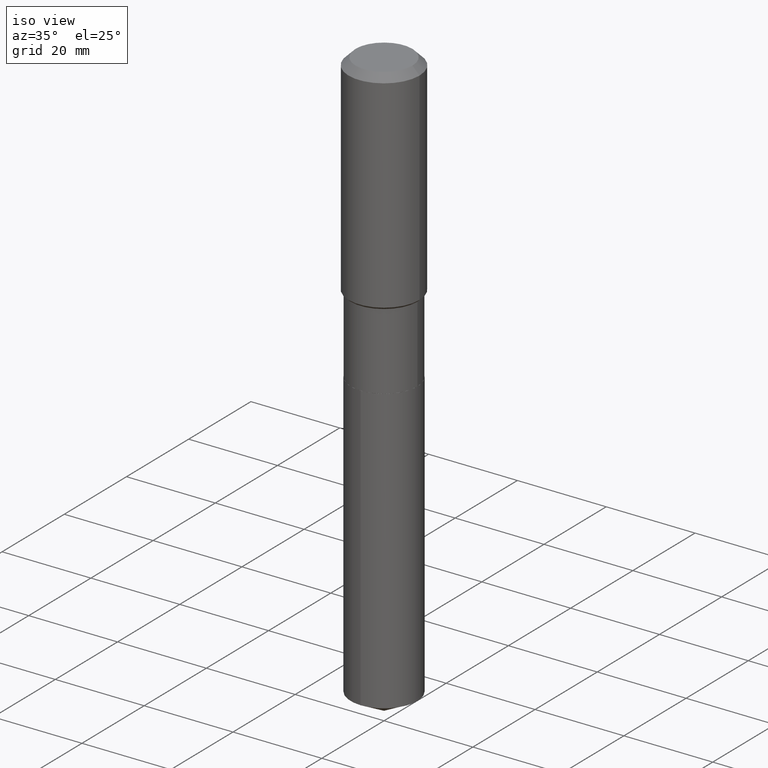
[diagram: clean part render]
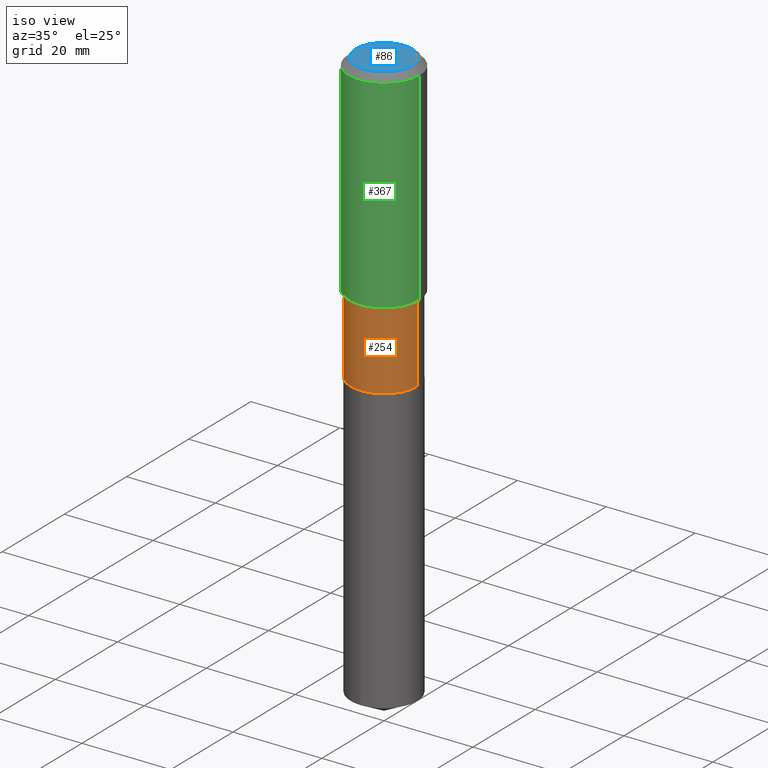
[diagram: same view with three faces highlighted in distinct colors, each labeled with its STEP entity id]
A machine part, iso view with three faces highlighted in distinct colors.
Their STEP definitions:

[orange] entity #254 — the highlighted cylindrical surface (partial cylindrical patch) has radius 7.5006 mm, axis along (-0, 0, 1).
#7 = DIRECTION ( 'NONE',  ( -2.445468806185136877E-29, 3.491481338843145188E-15, 1.000000000000000000 ) ) ;
#18 = CARTESIAN_POINT ( 'NONE',  ( 0.2953000000000000624, -1.099537303228482880E-14, -2.558599999999999763 ) ) ;
#21 = CARTESIAN_POINT ( 'NONE',  ( -0.2953000000000000069, 2.098232698699575898E-15, -1.452561532152273562E-29 ) ) ;
#51 = CARTESIAN_POINT ( 'NONE',  ( 0.2952999999999999514, -8.625704647611984399E-15, -1.879900000000000349 ) ) ;
#69 = CYLINDRICAL_SURFACE ( 'NONE', #195, 0.2953000000000000069 ) ;
#80 = AXIS2_PLACEMENT_3D ( 'NONE', #183, #176, #174 ) ;
#112 = CARTESIAN_POINT ( 'NONE',  ( 4.597236808747439228E-29, -6.563635768891230231E-15, -1.879900000000000349 ) ) ;
#113 = LINE ( 'NONE', #228, #354 ) ;
#114 = VERTEX_POINT ( 'NONE', #51 ) ;
#132 = LINE ( 'NONE', #21, #155 ) ;
#145 = ORIENTED_EDGE ( 'NONE', *, *, #272, .T. ) ;
#155 = VECTOR ( 'NONE', #284, 39.37007874015748143 ) ;
#157 = CARTESIAN_POINT ( 'NONE',  ( -0.2952999999999999514, -5.650237262528075742E-15, -1.879900000000000349 ) ) ;
#158 = VERTEX_POINT ( 'NONE', #18 ) ;
#163 = EDGE_CURVE ( 'NONE', #363, #374, #132, .T. ) ;
#174 = DIRECTION ( 'NONE',  ( 1.000000000000000000, -6.982962677686269077E-15, 0.000000000000000000 ) ) ;
#176 = DIRECTION ( 'NONE',  ( -2.445468806185136597E-29, 3.491481338843145583E-15, 1.000000000000000000 ) ) ;
#183 = CARTESIAN_POINT ( 'NONE',  ( 6.256976487505290023E-29, -8.933304153564073050E-15, -2.558599999999999763 ) ) ;
#195 = AXIS2_PLACEMENT_3D ( 'NONE', #217, #334, #485 ) ;
#196 = ORIENTED_EDGE ( 'NONE', *, *, #392, .F. ) ;
#217 = CARTESIAN_POINT ( 'NONE',  ( 0.000000000000000000, 0.000000000000000000, 0.000000000000000000 ) ) ;
#224 = ORIENTED_EDGE ( 'NONE', *, *, #451, .T. ) ;
#228 = CARTESIAN_POINT ( 'NONE',  ( 0.2953000000000000069, -2.062068878720754563E-15, 1.439935001892539937E-29 ) ) ;
#254 = ADVANCED_FACE ( 'NONE', ( #407 ), #69, .T. ) ;
#264 = EDGE_LOOP ( 'NONE', ( #271, #145, #224, #196 ) ) ;
#271 = ORIENTED_EDGE ( 'NONE', *, *, #163, .F. ) ;
#272 = EDGE_CURVE ( 'NONE', #363, #158, #401, .T. ) ;
#284 = DIRECTION ( 'NONE',  ( -2.445468806185136877E-29, 3.491481338843145188E-15, 1.000000000000000000 ) ) ;
#292 = AXIS2_PLACEMENT_3D ( 'NONE', #112, #376, #489 ) ;
#309 = CIRCLE ( 'NONE', #292, 0.2952999999999999514 ) ;
#334 = DIRECTION ( 'NONE',  ( -2.445468806185136597E-29, 3.491481338843145583E-15, 1.000000000000000000 ) ) ;
#346 = CARTESIAN_POINT ( 'NONE',  ( -0.2953000000000000624, -5.650237262528074953E-15, -2.558599999999999763 ) ) ;
#354 = VECTOR ( 'NONE', #7, 39.37007874015748143 ) ;
#363 = VERTEX_POINT ( 'NONE', #346 ) ;
#374 = VERTEX_POINT ( 'NONE', #157 ) ;
#376 = DIRECTION ( 'NONE',  ( -2.445468806185136597E-29, 3.491481338843145583E-15, 1.000000000000000000 ) ) ;
#392 = EDGE_CURVE ( 'NONE', #374, #114, #309, .T. ) ;
#401 = CIRCLE ( 'NONE', #80, 0.2953000000000000624 ) ;
#407 = FACE_OUTER_BOUND ( 'NONE', #264, .T. ) ;
#451 = EDGE_CURVE ( 'NONE', #158, #114, #113, .T. ) ;
#485 = DIRECTION ( 'NONE',  ( 1.000000000000000000, -6.982962677686266711E-15, 4.876176775795935793E-29 ) ) ;
#489 = DIRECTION ( 'NONE',  ( 1.000000000000000000, -6.982962677686265133E-15, 0.000000000000000000 ) ) ;

[blue] entity #86 — the highlighted planar face has unit normal (0, -0, -1).
#38 = CARTESIAN_POINT ( 'NONE',  ( 0.2519600000000000173, -2.054606664725195058E-15, 3.855188123729206640E-18 ) ) ;
#56 = CARTESIAN_POINT ( 'NONE',  ( -0.2519600000000000173, 1.869391481036695286E-15, 3.855188123703182704E-18 ) ) ;
#64 = CIRCLE ( 'NONE', #455, 0.2519600000000000173 ) ;
#76 = VERTEX_POINT ( 'NONE', #56 ) ;
#86 = ADVANCED_FACE ( 'NONE', ( #130 ), #470, .F. ) ;
#87 = DIRECTION ( 'NONE',  ( 1.000000000000000000, -6.982962677686266711E-15, 4.876115136096691995E-29 ) ) ;
#116 = EDGE_LOOP ( 'NONE', ( #123, #219 ) ) ;
#123 = ORIENTED_EDGE ( 'NONE', *, *, #477, .T. ) ;
#125 = AXIS2_PLACEMENT_3D ( 'NONE', #230, #419, #87 ) ;
#130 = FACE_OUTER_BOUND ( 'NONE', #116, .T. ) ;
#162 = CARTESIAN_POINT ( 'NONE',  ( -4.713871149261284790E-47, 6.730158695841843144E-33, 1.927594061857935750E-18 ) ) ;
#192 = EDGE_CURVE ( 'NONE', #344, #76, #64, .T. ) ;
#219 = ORIENTED_EDGE ( 'NONE', *, *, #192, .T. ) ;
#230 = CARTESIAN_POINT ( 'NONE',  ( -9.427742298522569579E-47, 1.346031739168368629E-32, 3.855188123715871501E-18 ) ) ;
#237 = DIRECTION ( 'NONE',  ( 2.438088387897960049E-29, -3.491481338843145188E-15, -1.000000000000000000 ) ) ;
#253 = CARTESIAN_POINT ( 'NONE',  ( -9.427742298522569579E-47, 1.346031739168368629E-32, 3.855188123715871501E-18 ) ) ;
#297 = DIRECTION ( 'NONE',  ( -2.445468806185136597E-29, 3.491481338843145583E-15, 1.000000000000000000 ) ) ;
#330 = CIRCLE ( 'NONE', #125, 0.2519600000000000173 ) ;
#333 = DIRECTION ( 'NONE',  ( 1.000000000000000000, -6.982962677686266711E-15, 4.876115136096691995E-29 ) ) ;
#344 = VERTEX_POINT ( 'NONE', #38 ) ;
#375 = AXIS2_PLACEMENT_3D ( 'NONE', #162, #237, #428 ) ;
#419 = DIRECTION ( 'NONE',  ( -2.445468806185136597E-29, 3.491481338843145583E-15, 1.000000000000000000 ) ) ;
#428 = DIRECTION ( 'NONE',  ( -1.000000000000000000, 6.982962677686265922E-15, -4.876176775795935793E-29 ) ) ;
#455 = AXIS2_PLACEMENT_3D ( 'NONE', #253, #297, #333 ) ;
#470 = PLANE ( 'NONE',  #375 ) ;
#477 = EDGE_CURVE ( 'NONE', #76, #344, #330, .T. ) ;

[green] entity #367 — the highlighted cylindrical surface (partial cylindrical patch) has radius 7.9997 mm, axis along (-0, 0, 1).
#3 = DIRECTION ( 'NONE',  ( -2.445468806185136597E-29, 3.491481338843145583E-15, 1.000000000000000000 ) ) ;
#10 = CARTESIAN_POINT ( 'NONE',  ( 1.540400801016026329E-30, -2.199284095337310135E-16, -0.06299000000000036514 ) ) ;
#34 = CYLINDRICAL_SURFACE ( 'NONE', #276, 0.3149500000000001743 ) ;
#39 = EDGE_CURVE ( 'NONE', #179, #227, #291, .T. ) ;
#42 = DIRECTION ( 'NONE',  ( -2.445468806185136597E-29, 3.491481338843145583E-15, 1.000000000000000000 ) ) ;
#53 = CARTESIAN_POINT ( 'NONE',  ( 4.549183346705900762E-29, -6.495028160582961591E-15, -1.860250000000000181 ) ) ;
#55 = AXIS2_PLACEMENT_3D ( 'NONE', #53, #322, #468 ) ;
#71 = EDGE_CURVE ( 'NONE', #179, #121, #427, .T. ) ;
#75 = DIRECTION ( 'NONE',  ( 1.000000000000000000, -6.982962677686266711E-15, 0.000000000000000000 ) ) ;
#99 = DIRECTION ( 'NONE',  ( -2.445468806185136877E-29, 3.491481338843145188E-15, 1.000000000000000000 ) ) ;
#121 = VERTEX_POINT ( 'NONE', #391 ) ;
#156 = CIRCLE ( 'NONE', #394, 0.3149500000000000077 ) ;
#173 = CARTESIAN_POINT ( 'NONE',  ( -0.3149500000000002298, -4.257173814306524817E-15, -1.860250000000000181 ) ) ;
#179 = VERTEX_POINT ( 'NONE', #173 ) ;
#189 = EDGE_LOOP ( 'NONE', ( #420, #305, #385, #412 ) ) ;
#213 = LINE ( 'NONE', #434, #285 ) ;
#227 = VERTEX_POINT ( 'NONE', #250 ) ;
#250 = CARTESIAN_POINT ( 'NONE',  ( 0.3149500000000002298, -8.694312255920253039E-15, -1.860250000000000181 ) ) ;
#258 = CARTESIAN_POINT ( 'NONE',  ( 0.000000000000000000, 0.000000000000000000, 0.000000000000000000 ) ) ;
#270 = DIRECTION ( 'NONE',  ( 1.000000000000000000, -6.982962677686265922E-15, 4.876176775795935232E-29 ) ) ;
#276 = AXIS2_PLACEMENT_3D ( 'NONE', #258, #42, #270 ) ;
#280 = EDGE_CURVE ( 'NONE', #227, #450, #213, .T. ) ;
#285 = VECTOR ( 'NONE', #326, 39.37007874015748143 ) ;
#291 = CIRCLE ( 'NONE', #55, 0.3149500000000002298 ) ;
#305 = ORIENTED_EDGE ( 'NONE', *, *, #39, .T. ) ;
#322 = DIRECTION ( 'NONE',  ( -2.445468806185136597E-29, 3.491481338843145583E-15, 1.000000000000000000 ) ) ;
#326 = DIRECTION ( 'NONE',  ( -2.445468806185136877E-29, 3.491481338843145188E-15, 1.000000000000000000 ) ) ;
#357 = EDGE_CURVE ( 'NONE', #121, #450, #156, .T. ) ;
#360 = VECTOR ( 'NONE', #99, 39.37007874015748143 ) ;
#367 = ADVANCED_FACE ( 'NONE', ( #411 ), #34, .T. ) ;
#385 = ORIENTED_EDGE ( 'NONE', *, *, #280, .T. ) ;
#391 = CARTESIAN_POINT ( 'NONE',  ( -0.3149500000000000077, -1.119623938781909738E-15, -0.06299000000000036514 ) ) ;
#394 = AXIS2_PLACEMENT_3D ( 'NONE', #10, #3, #75 ) ;
#411 = FACE_OUTER_BOUND ( 'NONE', #189, .T. ) ;
#412 = ORIENTED_EDGE ( 'NONE', *, *, #357, .F. ) ;
#417 = CARTESIAN_POINT ( 'NONE',  ( 0.3149500000000000077, -2.419212504871020909E-15, -0.06299000000000036514 ) ) ;
#420 = ORIENTED_EDGE ( 'NONE', *, *, #71, .F. ) ;
#427 = LINE ( 'NONE', #432, #360 ) ;
#432 = CARTESIAN_POINT ( 'NONE',  ( -0.3149500000000001743, 2.237854346276436774E-15, -1.549218606675783237E-29 ) ) ;
#434 = CARTESIAN_POINT ( 'NONE',  ( 0.3149500000000001743, -2.199284095337290660E-15, 1.535751875536930690E-29 ) ) ;
#450 = VERTEX_POINT ( 'NONE', #417 ) ;
#468 = DIRECTION ( 'NONE',  ( 1.000000000000000000, -6.982962677686264344E-15, 0.000000000000000000 ) ) ;